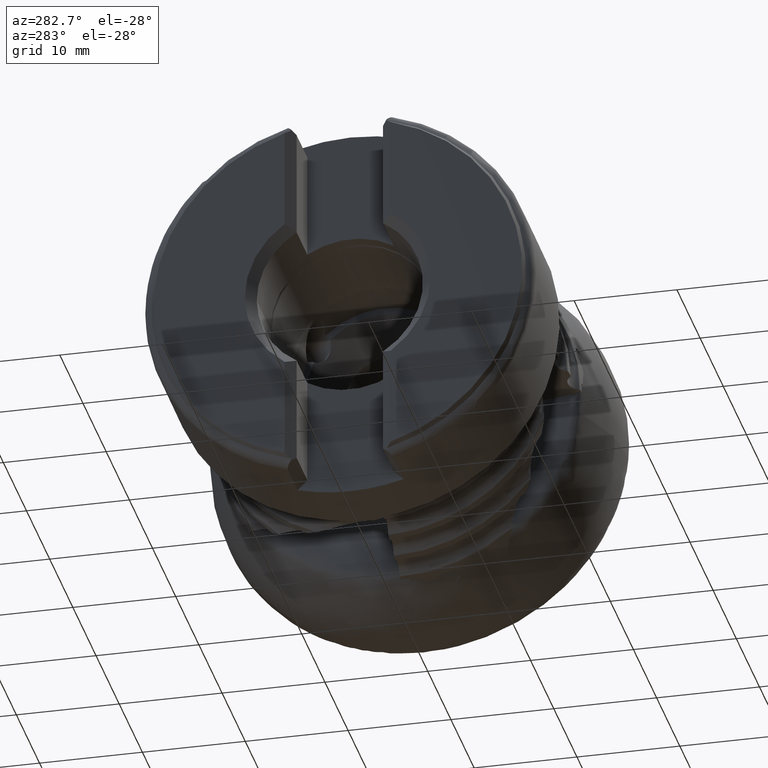
[diagram: clean part render]
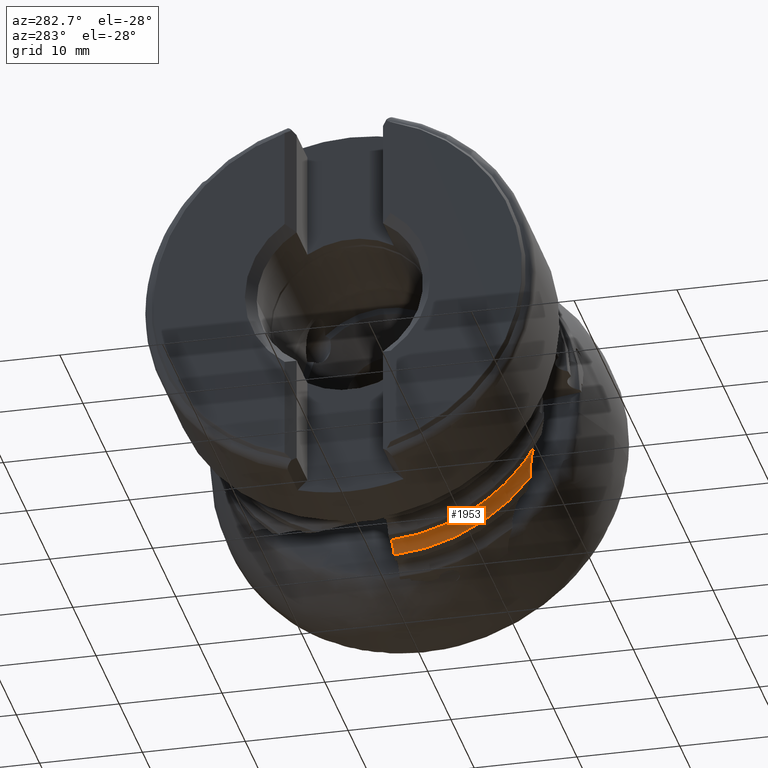
[diagram: same view with one face highlighted and labeled with its STEP entity id]
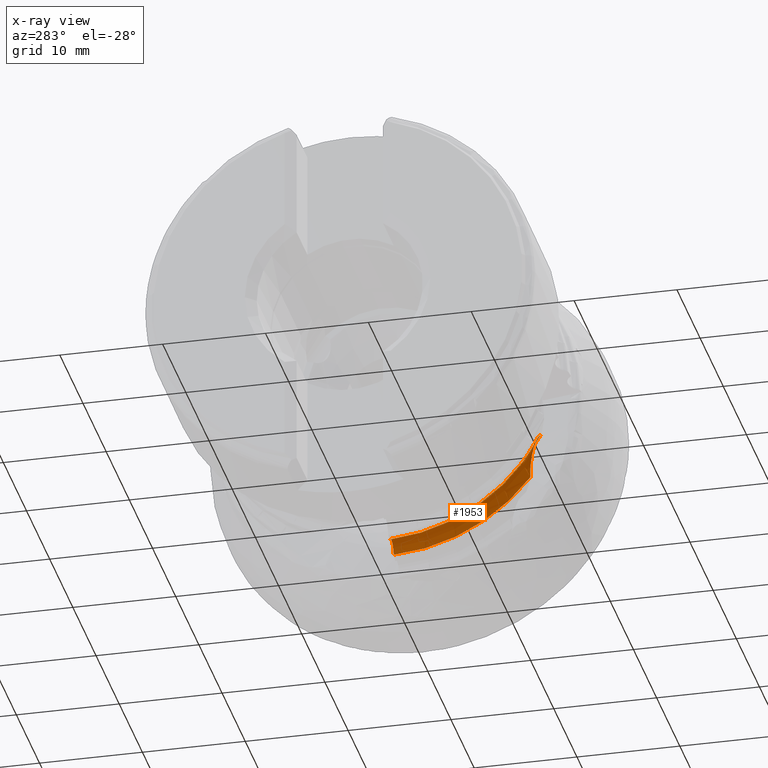
[diagram: x-ray of the same camera — body ghosted, the highlighted face saturated]
A machine part, auxiliary view. The second image highlights one B-rep face of the part: STEP entity #1953.
The next image is the same camera in x-ray: the body ghosted, the highlighted face saturated — about 0% of this face is hidden behind the body in this view.
In plain terms, the highlighted toroidal blend (fillet) surface has major radius 17.9999 mm and minor (blend) radius 1.5 mm.
Its self-contained STEP definition (entity closure, byte-faithful):
#11 = CARTESIAN_POINT ( 'NONE',  ( -18.54436039241631200, -14.69478577011566300, -7.661429712948659300 ) ) ;
#134 = CIRCLE ( 'NONE', #7328, 17.02687880896047500 ) ;
#212 = CARTESIAN_POINT ( 'NONE',  ( -16.73846142164647300, -0.4687579153980022700, -17.30071710437252000 ) ) ;
#400 = CARTESIAN_POINT ( 'NONE',  ( -16.73846142164634200, 0.0000000000000000000, 0.0000000000000000000 ) ) ;
#578 = CIRCLE ( 'NONE', #2103, 17.30706636922543100 ) ;
#736 = VERTEX_POINT ( 'NONE', #6863 ) ;
#752 = CARTESIAN_POINT ( 'NONE',  ( -16.73846142164659100, -13.74157817303648300, -10.52157667001960900 ) ) ;
#758 = CARTESIAN_POINT ( 'NONE',  ( -16.85243464402838900, -0.4767276994860983300, -17.08155489725415400 ) ) ;
#787 = CARTESIAN_POINT ( 'NONE',  ( -18.94332119061810700, -15.03133038786861800, -7.439714671190576400 ) ) ;
#1195 = DIRECTION ( 'NONE',  ( 0.0000000000000000000, 0.0000000000000000000, 1.000000000000000000 ) ) ;
#1201 = VERTEX_POINT ( 'NONE', #9049 ) ;
#1521 = CARTESIAN_POINT ( 'NONE',  ( -18.84172679504961000, -0.6158325576312356800, -16.69715891243101100 ) ) ;
#1584 = CARTESIAN_POINT ( 'NONE',  ( -19.21049323735087100, -15.30741898732543600, -7.456374851192546900 ) ) ;
#1827 = EDGE_CURVE ( 'NONE', #9191, #1201, #578, .T. ) ;
#1953 = ADVANCED_FACE ( 'NONE', ( #4498 ), #6354, .F. ) ;
#2103 = AXIS2_PLACEMENT_3D ( 'NONE', #400, #5894, #1195 ) ;
#2122 = EDGE_LOOP ( 'NONE', ( #3497, #4623, #4436, #2853 ) ) ;
#2305 = CARTESIAN_POINT ( 'NONE',  ( -18.50587967924333600, -0.5923478395224861500, -16.54919504039738200 ) ) ;
#2338 = CARTESIAN_POINT ( 'NONE',  ( -17.00119966164472600, -13.79137937288963300, -9.816048777191326700 ) ) ;
#2491 = EDGE_CURVE ( 'NONE', #4635, #9191, #9921, .T. ) ;
#2853 = ORIENTED_EDGE ( 'NONE', *, *, #2491, .T. ) ;
#3094 = CARTESIAN_POINT ( 'NONE',  ( -16.85208605979959600, -13.74515748991505500, -10.15798785173025500 ) ) ;
#3099 = CARTESIAN_POINT ( 'NONE',  ( -18.14348197565982800, -0.5670065234552473800, -16.48700324045896400 ) ) ;
#3121 = CARTESIAN_POINT ( 'NONE',  ( -17.53256935447433300, -14.03164436320192700, -8.843552307030796200 ) ) ;
#3148 = CARTESIAN_POINT ( 'NONE',  ( -19.21049323735086700, -0.6416192192931060600, -17.01478553354292300 ) ) ;
#3497 = ORIENTED_EDGE ( 'NONE', *, *, #1827, .T. ) ;
#3880 = CARTESIAN_POINT ( 'NONE',  ( -17.77821269031506500, -0.5414644068302086900, -16.51433384028387900 ) ) ;
#3888 = CARTESIAN_POINT ( 'NONE',  ( -19.21049323735088500, 0.0000000000000000000, 0.0000000000000000000 ) ) ;
#3912 = CARTESIAN_POINT ( 'NONE',  ( -17.95026498519448700, -14.27908547099597700, -8.269829419334307400 ) ) ;
#4436 = ORIENTED_EDGE ( 'NONE', *, *, #8379, .T. ) ;
#4498 = FACE_OUTER_BOUND ( 'NONE', #2122, .T. ) ;
#4623 = ORIENTED_EDGE ( 'NONE', *, *, #7395, .T. ) ;
#4634 = CARTESIAN_POINT ( 'NONE',  ( -19.04041851330593700, -0.6297264360484751100, -16.83874566765694800 ) ) ;
#4635 = VERTEX_POINT ( 'NONE', #3148 ) ;
#4674 = CARTESIAN_POINT ( 'NONE',  ( -17.43085020142401800, -0.5171744553932983200, -16.62886264828937800 ) ) ;
#4682 = DIRECTION ( 'NONE',  ( 0.0000000000000000000, 0.0000000000000000000, -1.000000000000000000 ) ) ;
#4699 = CARTESIAN_POINT ( 'NONE',  ( -18.29580421996323000, -14.51012599925058100, -7.880998858432981500 ) ) ;
#5278 = CARTESIAN_POINT ( 'NONE',  ( -18.06888100221454300, 0.0000000000000000000, 0.0000000000000000000 ) ) ;
#5457 = CARTESIAN_POINT ( 'NONE',  ( -17.01952718831720200, -0.4884119484077438200, -16.89371553787325900 ) ) ;
#5483 = CARTESIAN_POINT ( 'NONE',  ( -18.67434801579703300, -14.79721526035797800, -7.565675526682042600 ) ) ;
#5894 = DIRECTION ( 'NONE',  ( -1.000000000000000000, 0.0000000000000000000, 0.0000000000000000000 ) ) ;
#6208 = CARTESIAN_POINT ( 'NONE',  ( -19.21049323735086700, -0.6416192192931060600, -17.01478553354292300 ) ) ;
#6247 = CARTESIAN_POINT ( 'NONE',  ( -16.73846142164647300, -0.4687579153980022700, -17.30071710437252000 ) ) ;
#6275 = CARTESIAN_POINT ( 'NONE',  ( -19.08636149244293600, -15.16756023293343600, -7.410913970093814900 ) ) ;
#6354 = TOROIDAL_SURFACE ( 'NONE', #9520, 17.99987495725042300, 1.500000000000000900 ) ;
#6526 = B_SPLINE_CURVE_WITH_KNOTS ( 'NONE', 3,
 ( #752, #3094, #2338, #7819, #3121, #8625, #3912, #9439, #4699, #11, #5483, #787, #6275, #1584 ),
 .UNSPECIFIED., .F., .F.,
 ( 4, 2, 2, 2, 2, 2, 4 ),
 ( 6.617528944775897600E-007, 0.001128311169221789500, 0.002255960585549101400, 0.002819785293712755900, 0.003383610001876410900, 0.003947434710040066300, 0.004511259418203720900 ),
 .UNSPECIFIED. ) ;
#6863 = CARTESIAN_POINT ( 'NONE',  ( -19.21049323735087100, -15.30741898732543600, -7.456374851192546900 ) ) ;
#6984 = CARTESIAN_POINT ( 'NONE',  ( -18.73229497554892100, -0.6081803393683773400, -16.63795324559119500 ) ) ;
#7328 = AXIS2_PLACEMENT_3D ( 'NONE', #3888, #9414, #4682 ) ;
#7395 = EDGE_CURVE ( 'NONE', #1201, #736, #6526, .T. ) ;
#7787 = CARTESIAN_POINT ( 'NONE',  ( -18.38596644181022900, -0.5839626891189652100, -16.51836398165004400 ) ) ;
#7819 = CARTESIAN_POINT ( 'NONE',  ( -17.34127832017629700, -13.93411069991738300, -9.157701756065151200 ) ) ;
#8379 = EDGE_CURVE ( 'NONE', #736, #4635, #134, .T. ) ;
#8596 = CARTESIAN_POINT ( 'NONE',  ( -18.02193226408852300, -0.5585069396324143800, -16.48614713267451000 ) ) ;
#8625 = CARTESIAN_POINT ( 'NONE',  ( -17.84258960355356600, -14.21264467106611900, -8.409083116125694700 ) ) ;
#9049 = CARTESIAN_POINT ( 'NONE',  ( -16.73846142164659100, -13.74157817303648300, -10.52157667001960900 ) ) ;
#9191 = VERTEX_POINT ( 'NONE', #212 ) ;
#9409 = CARTESIAN_POINT ( 'NONE',  ( -17.65869335054573600, -0.5331068004345475000, -16.54335060354373300 ) ) ;
#9414 = DIRECTION ( 'NONE',  ( 1.000000000000000000, -0.0000000000000000000, -0.0000000000000000000 ) ) ;
#9439 = CARTESIAN_POINT ( 'NONE',  ( -18.17689252913793000, -14.42785326696169400, -8.005808808302013800 ) ) ;
#9520 = AXIS2_PLACEMENT_3D ( 'NONE', #5278, #10016, #10048 ) ;
#9921 = B_SPLINE_CURVE_WITH_KNOTS ( 'NONE', 3,
 ( #6208, #10179, #4634, #1521, #6984, #2305, #7787, #3099, #8596, #3880, #9409, #4674, #10220, #5457, #758, #6247 ),
 .UNSPECIFIED., .F., .F.,
 ( 4, 2, 2, 2, 2, 2, 2, 4 ),
 ( 3.040236944974078100E-007, 0.0003657959286676820600, 0.0007312878336408667900, 0.001096779738614051400, 0.001462271643587236000, 0.001827763548560420700, 0.002193255453533605500, 0.002924239263479977300 ),
 .UNSPECIFIED. ) ;
#10016 = DIRECTION ( 'NONE',  ( 1.000000000000000000, -0.0000000000000000000, -0.0000000000000000000 ) ) ;
#10048 = DIRECTION ( 'NONE',  ( 0.0000000000000000000, 0.0000000000000000000, -1.000000000000000000 ) ) ;
#10179 = CARTESIAN_POINT ( 'NONE',  ( -19.13033950177716800, -0.6360143240990753200, -16.92088601306469900 ) ) ;
#10220 = CARTESIAN_POINT ( 'NONE',  ( -17.32041397203214600, -0.5094520019488635300, -16.68650127885360500 ) ) ;